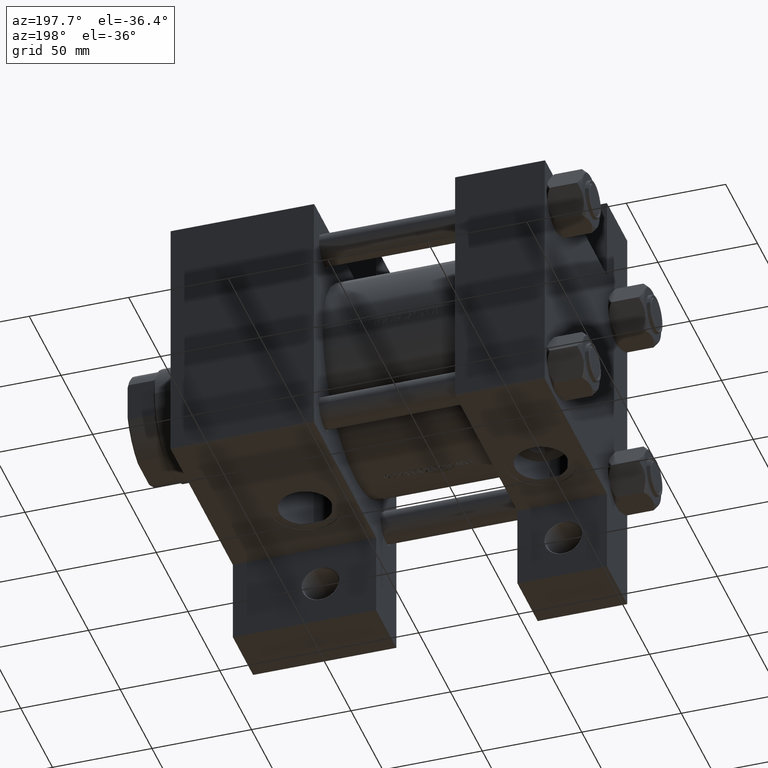
[diagram: clean part render]
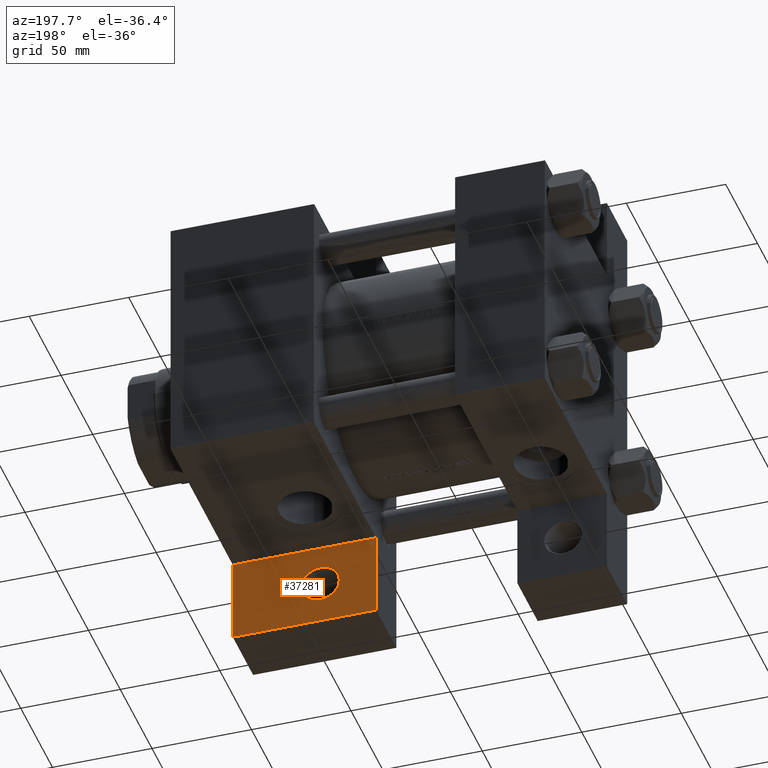
[diagram: same view with one face highlighted and labeled with its STEP entity id]
A machine part, auxiliary view. The second image highlights one B-rep face of the part: STEP entity #37281.
In plain terms, the highlighted planar face has unit normal (0, 1, 0).
Its self-contained STEP definition (entity closure, byte-faithful):
#748 = DIRECTION ( 'NONE',  ( 1.000000000000000000, 0.000000000000000000, 0.000000000000000000 ) ) ;
#2139 = DIRECTION ( 'NONE',  ( 1.000000000000000000, -3.854941057726239576E-16, 0.000000000000000000 ) ) ;
#3101 = CARTESIAN_POINT ( 'NONE',  ( 153.4995000000002392, 86.00000000000000000, -33.00000000000000000 ) ) ;
#4008 = CIRCLE ( 'NONE', #5600, 9.499500000000216104 ) ;
#4059 = EDGE_CURVE ( 'NONE', #4899, #42987, #44032, .T. ) ;
#4227 = EDGE_CURVE ( 'NONE', #42987, #30168, #24276, .T. ) ;
#4899 = VERTEX_POINT ( 'NONE', #38194 ) ;
#5600 = AXIS2_PLACEMENT_3D ( 'NONE', #34017, #26979, #748 ) ;
#7393 = EDGE_LOOP ( 'NONE', ( #11086, #25659, #35623, #47545 ) ) ;
#7523 = VERTEX_POINT ( 'NONE', #36013 ) ;
#9757 = CARTESIAN_POINT ( 'NONE',  ( 115.9999999999999858, 65.00000000000002842, -33.00000000000000000 ) ) ;
#11086 = ORIENTED_EDGE ( 'NONE', *, *, #44518, .F. ) ;
#11387 = EDGE_CURVE ( 'NONE', #44022, #4899, #12837, .T. ) ;
#12127 = EDGE_CURVE ( 'NONE', #7523, #43951, #4008, .T. ) ;
#12191 = CARTESIAN_POINT ( 'NONE',  ( 144.0000000000000284, 86.00000000000000000, -33.00000000000000000 ) ) ;
#12458 = VECTOR ( 'NONE', #39333, 1000.000000000000000 ) ;
#12837 = LINE ( 'NONE', #38833, #40463 ) ;
#15647 = DIRECTION ( 'NONE',  ( 3.227392513445224783E-16, 1.000000000000000000, -0.000000000000000000 ) ) ;
#16647 = AXIS2_PLACEMENT_3D ( 'NONE', #12191, #23612, #16801 ) ;
#16801 = DIRECTION ( 'NONE',  ( 1.000000000000000000, 0.000000000000000000, 0.000000000000000000 ) ) ;
#20364 = ORIENTED_EDGE ( 'NONE', *, *, #12127, .T. ) ;
#21385 = ORIENTED_EDGE ( 'NONE', *, *, #34355, .T. ) ;
#21918 = CARTESIAN_POINT ( 'NONE',  ( 187.9999999999999716, 107.9999999999999716, -33.00000000000000000 ) ) ;
#23612 = DIRECTION ( 'NONE',  ( -0.000000000000000000, -0.000000000000000000, -1.000000000000000000 ) ) ;
#24276 = LINE ( 'NONE', #32024, #12458 ) ;
#25659 = ORIENTED_EDGE ( 'NONE', *, *, #4227, .F. ) ;
#26051 = AXIS2_PLACEMENT_3D ( 'NONE', #33121, #26086, #44322 ) ;
#26086 = DIRECTION ( 'NONE',  ( 0.000000000000000000, 0.000000000000000000, 1.000000000000000000 ) ) ;
#26588 = CARTESIAN_POINT ( 'NONE',  ( 116.0000000000000000, 108.0000000000000000, -33.00000000000000000 ) ) ;
#26979 = DIRECTION ( 'NONE',  ( -0.000000000000000000, -0.000000000000000000, -1.000000000000000000 ) ) ;
#29958 = FACE_BOUND ( 'NONE', #44443, .T. ) ;
#30168 = VERTEX_POINT ( 'NONE', #9757 ) ;
#32024 = CARTESIAN_POINT ( 'NONE',  ( 115.9999999999999858, 65.00000000000002842, -33.00000000000000000 ) ) ;
#33121 = CARTESIAN_POINT ( 'NONE',  ( 0.000000000000000000, 0.000000000000000000, -33.00000000000000000 ) ) ;
#34017 = CARTESIAN_POINT ( 'NONE',  ( 144.0000000000000284, 86.00000000000000000, -33.00000000000000000 ) ) ;
#34355 = EDGE_CURVE ( 'NONE', #43951, #7523, #39924, .T. ) ;
#34928 = VECTOR ( 'NONE', #40624, 1000.000000000000000 ) ;
#35623 = ORIENTED_EDGE ( 'NONE', *, *, #4059, .F. ) ;
#36013 = CARTESIAN_POINT ( 'NONE',  ( 134.5004999999997892, 86.00000000000000000, -33.00000000000000000 ) ) ;
#36195 = VECTOR ( 'NONE', #15647, 1000.000000000000000 ) ;
#37281 = ADVANCED_FACE ( 'NONE', ( #29958, #44804 ), #40440, .T. ) ;
#38194 = CARTESIAN_POINT ( 'NONE',  ( 187.9999999999999716, 107.9999999999999716, -33.00000000000000000 ) ) ;
#38833 = CARTESIAN_POINT ( 'NONE',  ( 116.0000000000000000, 108.0000000000000000, -33.00000000000000000 ) ) ;
#39333 = DIRECTION ( 'NONE',  ( -1.000000000000000000, 5.782411586589358625E-16, -0.000000000000000000 ) ) ;
#39924 = CIRCLE ( 'NONE', #16647, 9.499500000000216104 ) ;
#40440 = PLANE ( 'NONE',  #26051 ) ;
#40463 = VECTOR ( 'NONE', #2139, 1000.000000000000000 ) ;
#40624 = DIRECTION ( 'NONE',  ( 0.000000000000000000, -1.000000000000000000, 0.000000000000000000 ) ) ;
#42987 = VERTEX_POINT ( 'NONE', #45972 ) ;
#43951 = VERTEX_POINT ( 'NONE', #3101 ) ;
#44022 = VERTEX_POINT ( 'NONE', #48049 ) ;
#44032 = LINE ( 'NONE', #21918, #34928 ) ;
#44322 = DIRECTION ( 'NONE',  ( 1.000000000000000000, 0.000000000000000000, -0.000000000000000000 ) ) ;
#44443 = EDGE_LOOP ( 'NONE', ( #21385, #20364 ) ) ;
#44518 = EDGE_CURVE ( 'NONE', #30168, #44022, #45070, .T. ) ;
#44804 = FACE_OUTER_BOUND ( 'NONE', #7393, .T. ) ;
#45070 = LINE ( 'NONE', #26588, #36195 ) ;
#45972 = CARTESIAN_POINT ( 'NONE',  ( 187.9999999999999716, 64.99999999999998579, -33.00000000000000000 ) ) ;
#47545 = ORIENTED_EDGE ( 'NONE', *, *, #11387, .F. ) ;
#48049 = CARTESIAN_POINT ( 'NONE',  ( 116.0000000000000000, 108.0000000000000000, -33.00000000000000000 ) ) ;